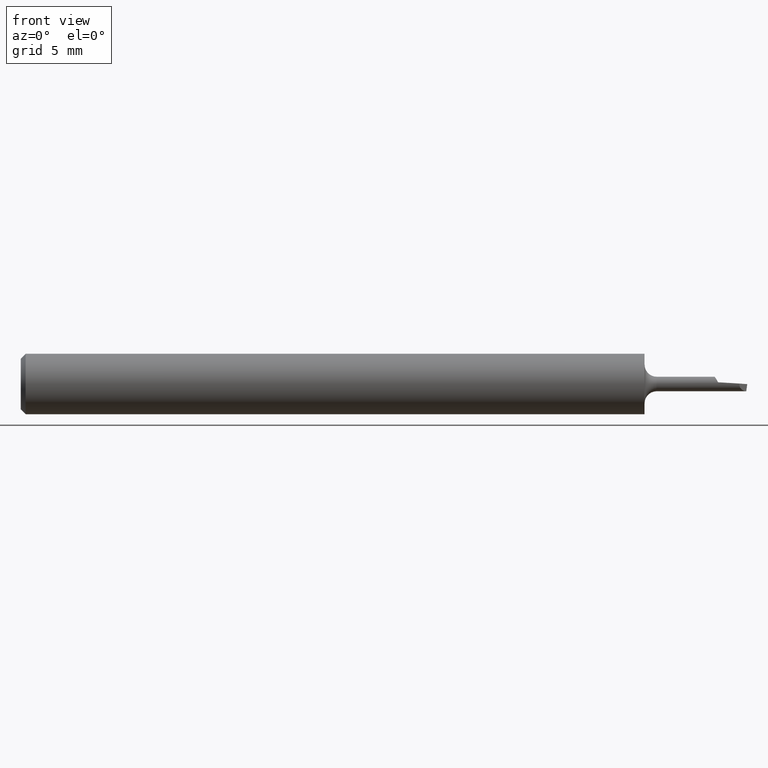
[diagram: clean part render]
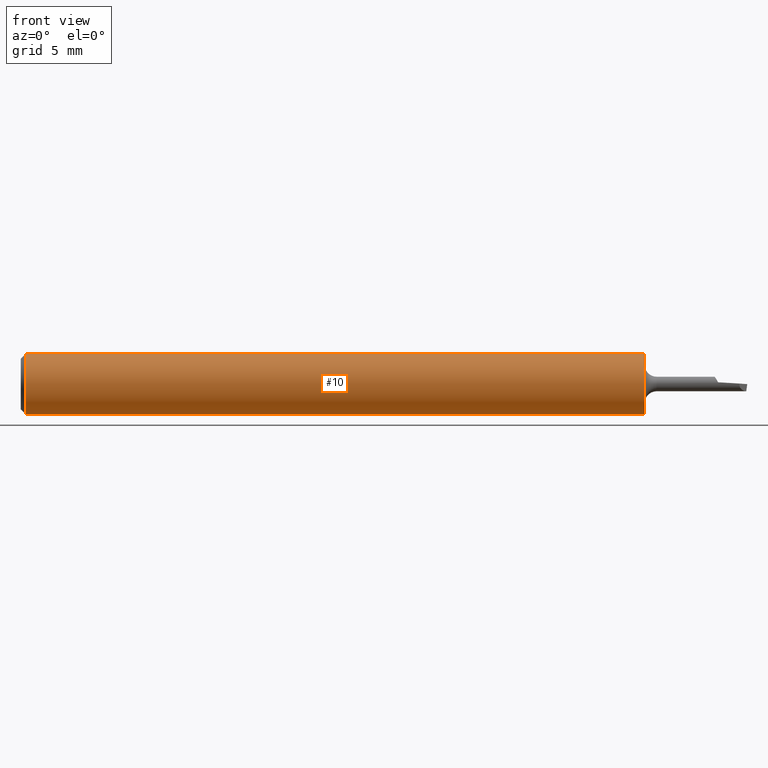
[diagram: same view with one face highlighted and labeled with its STEP entity id]
A machine part, front view. The second image highlights one B-rep face of the part: STEP entity #10.
In plain terms, the highlighted cylindrical surface (edge-blend (fillet) strip) has radius 1.5837 mm, axis along (-1, -0, -0).
Its self-contained STEP definition (entity closure, byte-faithful):
#10 = ADVANCED_FACE ( 'NONE', ( #597 ), #202, .T. ) ;
#35 = DIRECTION ( 'NONE',  ( 0.000000000000000000, 0.000000000000000000, 1.000000000000000000 ) ) ;
#85 = CARTESIAN_POINT ( 'NONE',  ( 0.000000000000000000, 0.000000000000000000, 0.000000000000000000 ) ) ;
#87 = AXIS2_PLACEMENT_3D ( 'NONE', #85, #613, #35 ) ;
#98 = ORIENTED_EDGE ( 'NONE', *, *, #223, .F. ) ;
#115 = CARTESIAN_POINT ( 'NONE',  ( 0.000000000000000000, 7.635672792683743590E-18, -0.06234999999999997489 ) ) ;
#125 = AXIS2_PLACEMENT_3D ( 'NONE', #216, #522, #706 ) ;
#170 = DIRECTION ( 'NONE',  ( 0.000000000000000000, 0.000000000000000000, 1.000000000000000000 ) ) ;
#202 = CYLINDRICAL_SURFACE ( 'NONE', #87, 0.06234999999999997489 ) ;
#216 = CARTESIAN_POINT ( 'NONE',  ( 1.288000000000000256, 0.000000000000000000, 0.000000000000000000 ) ) ;
#223 = EDGE_CURVE ( 'NONE', #695, #298, #375, .T. ) ;
#235 = ORIENTED_EDGE ( 'NONE', *, *, #585, .F. ) ;
#272 = LINE ( 'NONE', #733, #645 ) ;
#298 = VERTEX_POINT ( 'NONE', #357 ) ;
#327 = VERTEX_POINT ( 'NONE', #531 ) ;
#357 = CARTESIAN_POINT ( 'NONE',  ( 1.288000000000000256, 7.635672792683743590E-18, -0.06234999999999997489 ) ) ;
#375 = CIRCLE ( 'NONE', #125, 0.06234999999999997489 ) ;
#386 = VECTOR ( 'NONE', #572, 39.37007874015748143 ) ;
#397 = ORIENTED_EDGE ( 'NONE', *, *, #671, .F. ) ;
#417 = CARTESIAN_POINT ( 'NONE',  ( 0.01000000000000000021, 0.000000000000000000, 0.06235000000000000264 ) ) ;
#454 = DIRECTION ( 'NONE',  ( -1.000000000000000000, -0.000000000000000000, -0.000000000000000000 ) ) ;
#491 = EDGE_LOOP ( 'NONE', ( #397, #98, #584, #235 ) ) ;
#522 = DIRECTION ( 'NONE',  ( 1.000000000000000000, 0.000000000000000000, 0.000000000000000000 ) ) ;
#531 = CARTESIAN_POINT ( 'NONE',  ( 0.01000000000000000021, 7.635672792683748212E-18, -0.06235000000000000264 ) ) ;
#541 = CIRCLE ( 'NONE', #714, 0.06235000000000000264 ) ;
#565 = CARTESIAN_POINT ( 'NONE',  ( 0.01000000000000000021, 0.000000000000000000, 0.000000000000000000 ) ) ;
#569 = DIRECTION ( 'NONE',  ( -1.000000000000000000, -0.000000000000000000, -0.000000000000000000 ) ) ;
#572 = DIRECTION ( 'NONE',  ( -1.000000000000000000, -0.000000000000000000, -0.000000000000000000 ) ) ;
#584 = ORIENTED_EDGE ( 'NONE', *, *, #622, .T. ) ;
#585 = EDGE_CURVE ( 'NONE', #327, #707, #541, .T. ) ;
#597 = FACE_OUTER_BOUND ( 'NONE', #491, .T. ) ;
#613 = DIRECTION ( 'NONE',  ( -1.000000000000000000, -0.000000000000000000, -0.000000000000000000 ) ) ;
#622 = EDGE_CURVE ( 'NONE', #695, #707, #272, .T. ) ;
#634 = LINE ( 'NONE', #115, #386 ) ;
#645 = VECTOR ( 'NONE', #454, 39.37007874015748143 ) ;
#671 = EDGE_CURVE ( 'NONE', #298, #327, #634, .T. ) ;
#695 = VERTEX_POINT ( 'NONE', #715 ) ;
#706 = DIRECTION ( 'NONE',  ( 0.000000000000000000, 0.000000000000000000, -1.000000000000000000 ) ) ;
#707 = VERTEX_POINT ( 'NONE', #417 ) ;
#714 = AXIS2_PLACEMENT_3D ( 'NONE', #565, #569, #170 ) ;
#715 = CARTESIAN_POINT ( 'NONE',  ( 1.288000000000000256, 0.000000000000000000, 0.06234999999999997489 ) ) ;
#733 = CARTESIAN_POINT ( 'NONE',  ( 0.000000000000000000, 0.000000000000000000, 0.06234999999999997489 ) ) ;